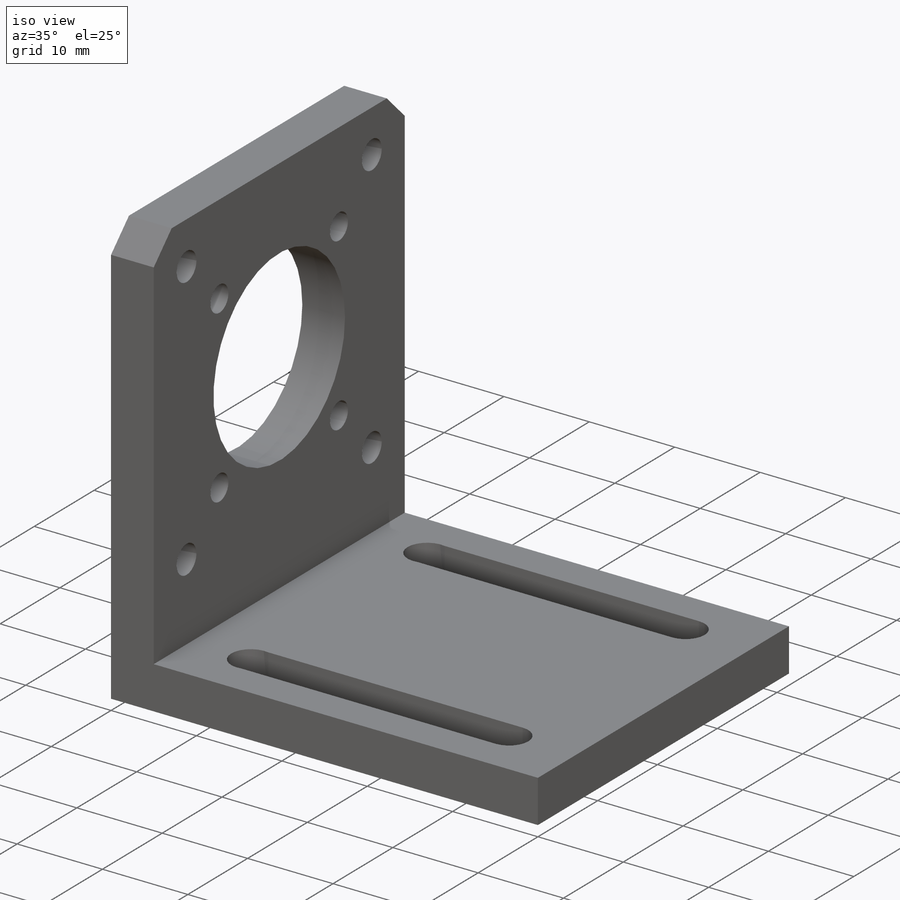
[diagram: iso view]
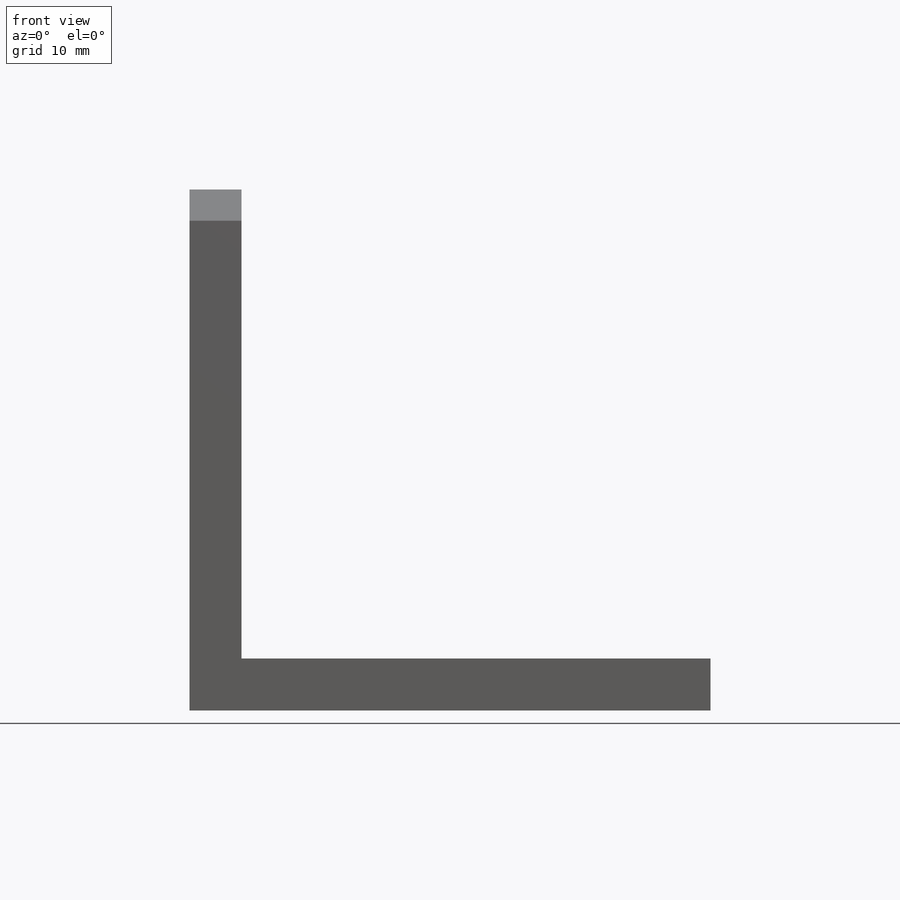
[diagram: front view]
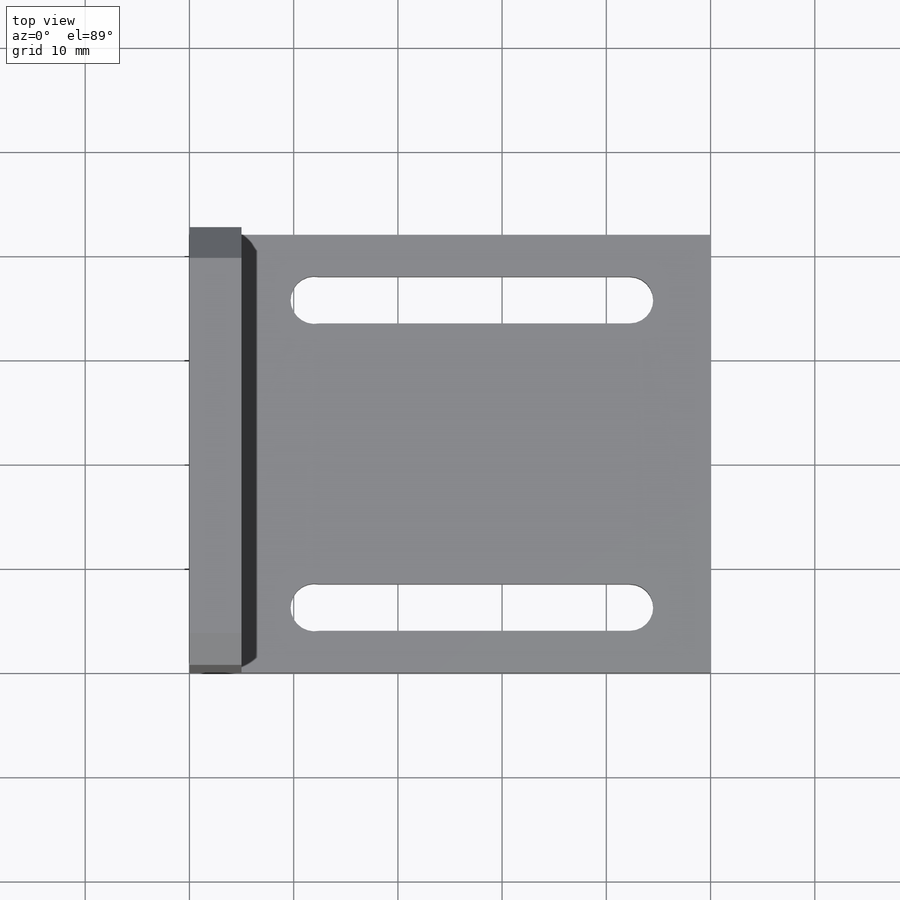
[diagram: top view]
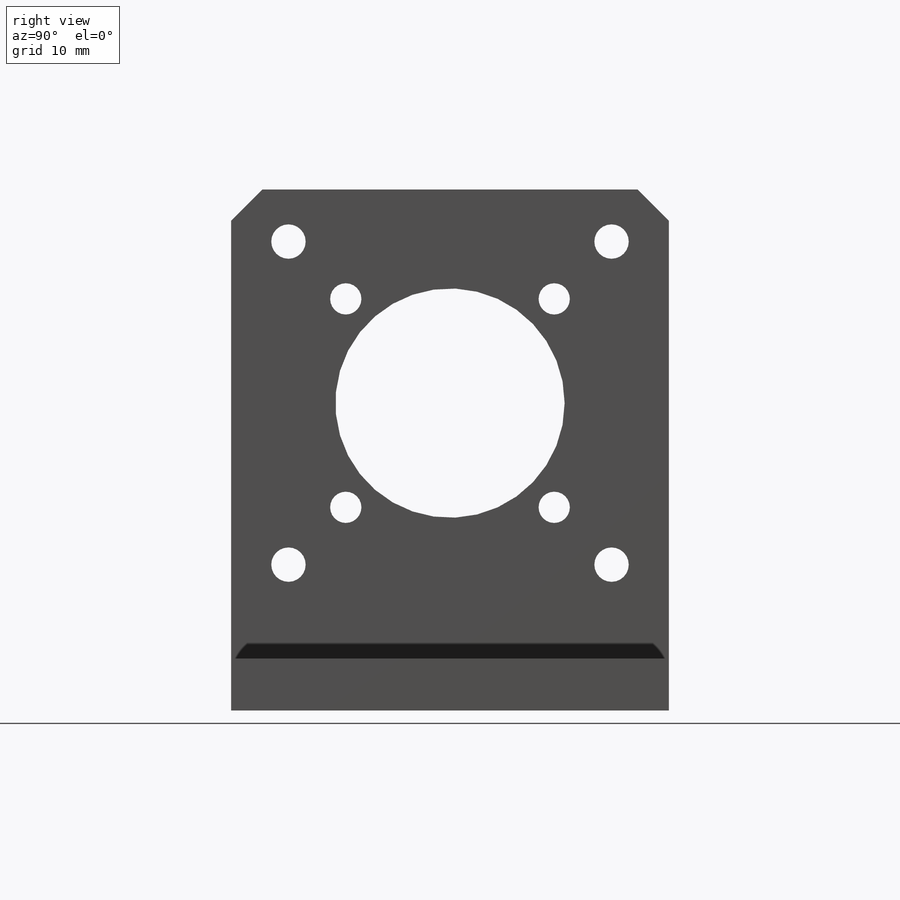
[diagram: right view]
SOLIDWORKS PART (.sldprt)
format: sldprt  version: not decoded by parser v0  size: 451,584 bytes
history: native  units: mm
features: sketch x5, cut_extrude x3, extrude x2, material x1 (+12 scaffold rows collapsed)
feature tree (23):
  scaffold x12  (default folders/planes/origin — collapsed)
  material  "Material <not specified>"
  sketch  "Sketch1"  dims[D1=50.0mm D2=42.0mm]
  extrude  "Boss-Extrude1"  Depth=5mm
  sketch  "Sketch2"  dims[D1=5.0mm]
  extrude  "Boss-Extrude2"  Depth=45mm
  sketch  "Sketch3"  dims[D1=3.0mm D2=3.0mm D3=3.0mm D4=3.0mm]
  cut_extrude  "Cut-Extrude1"  Depth=45mm
  sketch  "Sketch4"  dims[c1.D3=2.25mm c1.D4=2.25mm c1.D1=4.0mm c1.D2=4.5mm c2.D3=7.0mm c2.D4=7.75mm c2.D5=4.5mm c2.D7=29.5mm c2.D6=2.0]
  cut_extrude  "Cut-Extrude3"  [1 undecoded]
  sketch  "Sketch7"  dims[c1.D1=22.0mm c1.D4=3.0mm c1.D5=3.3mm c1.D6=3.3mm c1.D2=21.0mm c1.D3=20.5mm c2.D5=22.5mm c2.D6=42.0mm c2.D4=14.0mm c3.D5=14.0mm c3.D6=14.0mm c3.D7=14.0mm c4.D6=10.0mm c4.D7=10.0mm c4.D8=10.0mm c4.D9=10.0mm c4.D10=15.5mm c4.D11=15.5mm c4.D12=15.5mm c4.D13=15.5mm c5.D12=15.5mm c5.D13=15.5mm c5.D10=15.5mm c5.D11=15.5mm c6.D12=15.5mm c6.D13=15.5mm]
  cut_extrude  "Cut-Extrude4"  [1 undecoded]
decode coverage: 8 of 10 modeling features carry decoded parameters
note: 2 parameter values undecoded
note: suppression state not decoded; provenance and decode notes live in map.json
